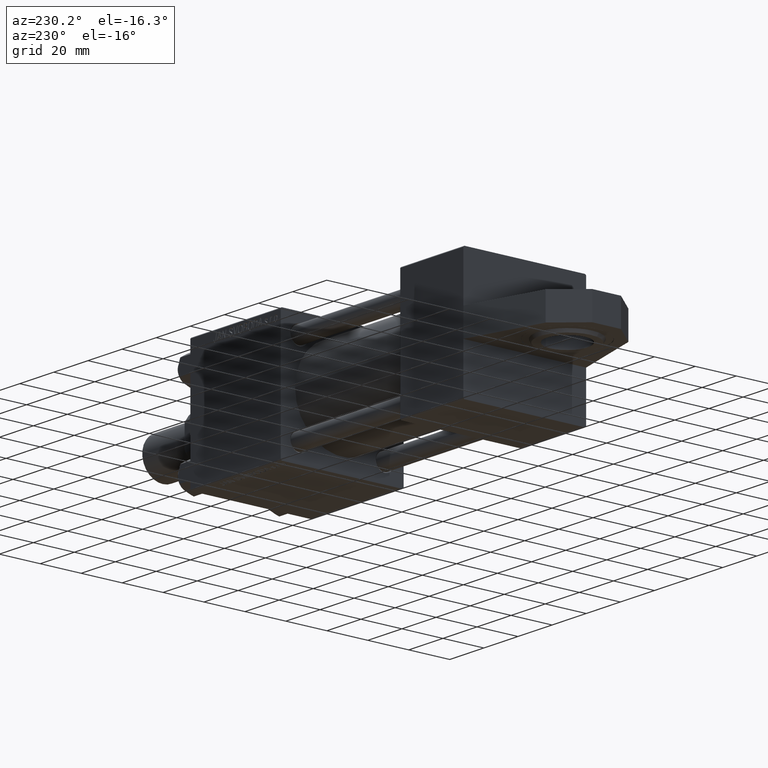
[diagram: clean part render]
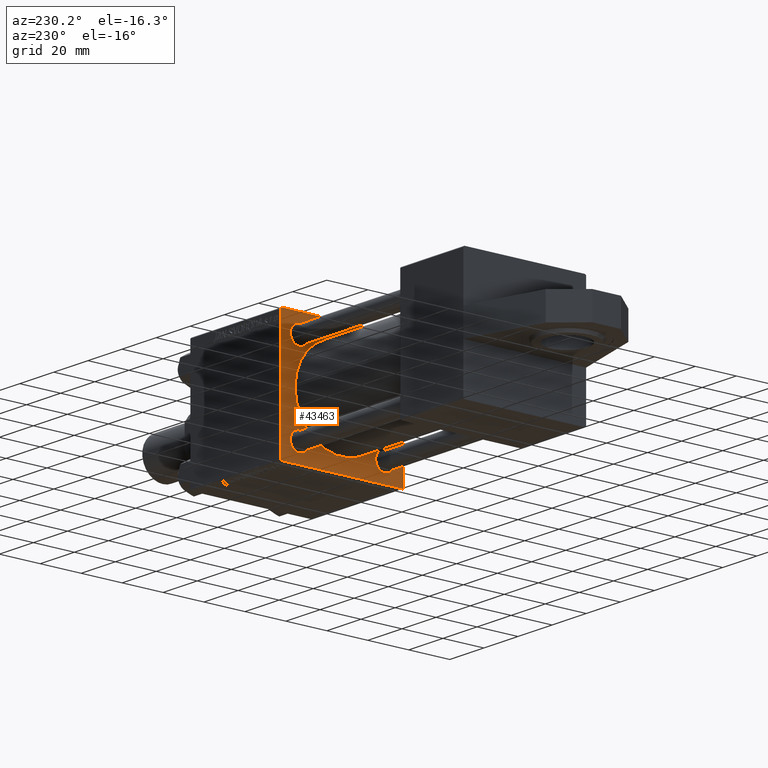
[diagram: same view with one face highlighted and labeled with its STEP entity id]
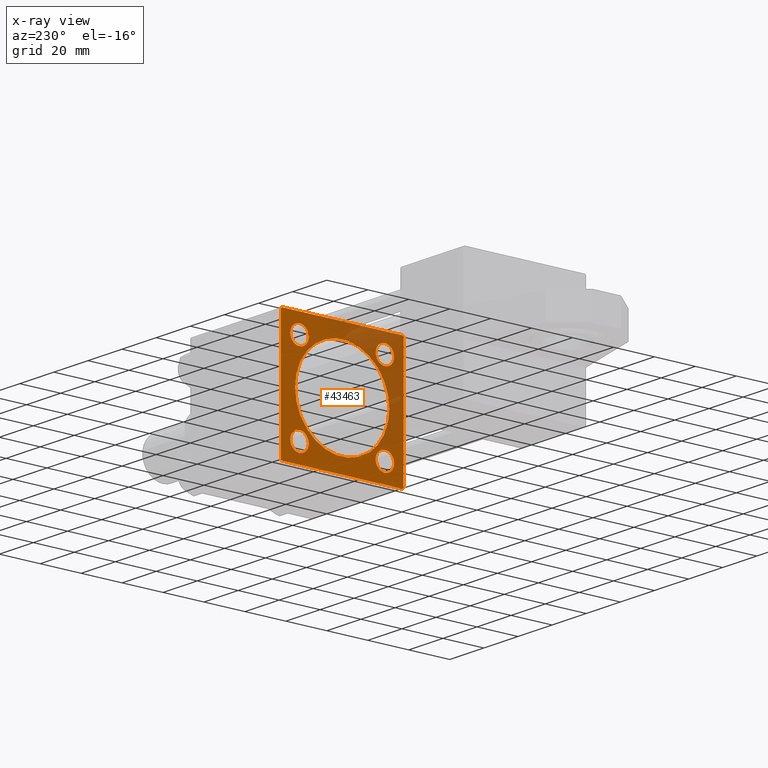
[diagram: x-ray of the same camera — body ghosted, the highlighted face saturated]
A machine part, auxiliary view. The second image highlights one B-rep face of the part: STEP entity #43463.
The next image is the same camera in x-ray: the body ghosted, the highlighted face saturated — about 33% of this face is hidden behind the body in this view.
In plain terms, the highlighted planar face has unit normal (-1, 0, 0).
Its self-contained STEP definition (entity closure, byte-faithful):
#1 = CARTESIAN_POINT ( 'NONE',  ( 107.0000000000000142, -29.50000000000002487, 29.99999999999999289 ) ) ;
#389 = FACE_OUTER_BOUND ( 'NONE', #39877, .T. ) ;
#590 = AXIS2_PLACEMENT_3D ( 'NONE', #11017, #46446, #3307 ) ;
#981 = CARTESIAN_POINT ( 'NONE',  ( 107.0000000000000142, -30.00000000000000000, 29.99999999999999289 ) ) ;
#988 = ORIENTED_EDGE ( 'NONE', *, *, #26644, .T. ) ;
#1090 = ORIENTED_EDGE ( 'NONE', *, *, #34230, .T. ) ;
#1176 = ORIENTED_EDGE ( 'NONE', *, *, #26183, .T. ) ;
#1491 = EDGE_CURVE ( 'NONE', #12984, #36021, #13857, .T. ) ;
#1623 = DIRECTION ( 'NONE',  ( 1.000000000000000000, -0.000000000000000000, 0.000000000000000000 ) ) ;
#1671 = DIRECTION ( 'NONE',  ( 0.000000000000000000, 0.000000000000000000, 1.000000000000000000 ) ) ;
#1841 = CARTESIAN_POINT ( 'NONE',  ( 107.0000000000000142, -29.75000000000001066, 29.75000000000001066 ) ) ;
#2105 = ORIENTED_EDGE ( 'NONE', *, *, #2419, .F. ) ;
#2200 = CARTESIAN_POINT ( 'NONE',  ( 107.0000000000000142, -20.85000000000000142, -25.34999999999997655 ) ) ;
#2419 = EDGE_CURVE ( 'NONE', #42740, #33787, #40095, .T. ) ;
#2504 = EDGE_CURVE ( 'NONE', #8441, #45309, #15558, .T. ) ;
#2676 = EDGE_CURVE ( 'NONE', #34065, #33787, #2875, .T. ) ;
#2700 = CARTESIAN_POINT ( 'NONE',  ( 107.0000000000000142, 20.84999999999999787, 16.35000000000002274 ) ) ;
#2875 = LINE ( 'NONE', #1841, #36884 ) ;
#3307 = DIRECTION ( 'NONE',  ( 0.000000000000000000, 0.000000000000000000, 1.000000000000000000 ) ) ;
#3590 = LINE ( 'NONE', #981, #35015 ) ;
#3953 = CARTESIAN_POINT ( 'NONE',  ( 107.0000000000000142, -29.74999999999999645, -29.74999999999999645 ) ) ;
#4187 = DIRECTION ( 'NONE',  ( 0.000000000000000000, -1.000000000000000000, -1.156482317317871478E-16 ) ) ;
#4493 = DIRECTION ( 'NONE',  ( -0.000000000000000000, 0.000000000000000000, 1.000000000000000000 ) ) ;
#4676 = CARTESIAN_POINT ( 'NONE',  ( 107.0000000000000142, 30.00000000000000000, 30.00000000000000000 ) ) ;
#5036 = EDGE_CURVE ( 'NONE', #43813, #6222, #11545, .T. ) ;
#5240 = FACE_BOUND ( 'NONE', #40808, .T. ) ;
#5721 = DIRECTION ( 'NONE',  ( 0.000000000000000000, 0.000000000000000000, 1.000000000000000000 ) ) ;
#5764 = AXIS2_PLACEMENT_3D ( 'NONE', #40889, #1623, #5721 ) ;
#6026 = CARTESIAN_POINT ( 'NONE',  ( 107.0000000000000142, -30.00000000000000000, -29.49999999999998579 ) ) ;
#6222 = VERTEX_POINT ( 'NONE', #18025 ) ;
#6488 = AXIS2_PLACEMENT_3D ( 'NONE', #36844, #48663, #1671 ) ;
#6543 = ORIENTED_EDGE ( 'NONE', *, *, #28515, .F. ) ;
#6886 = EDGE_CURVE ( 'NONE', #26181, #7179, #33718, .T. ) ;
#7179 = VERTEX_POINT ( 'NONE', #7789 ) ;
#7789 = CARTESIAN_POINT ( 'NONE',  ( 107.0000000000000142, 2.146024240737016609E-16, -23.00000000000000000 ) ) ;
#7800 = VECTOR ( 'NONE', #46135, 1000.000000000000114 ) ;
#7972 = CARTESIAN_POINT ( 'NONE',  ( 107.0000000000000142, 29.50000000000000000, 30.00000000000000000 ) ) ;
#8045 = CARTESIAN_POINT ( 'NONE',  ( 107.0000000000000142, 30.00000000000000000, -29.99999999999999289 ) ) ;
#8441 = VERTEX_POINT ( 'NONE', #22122 ) ;
#8539 = LINE ( 'NONE', #8045, #37187 ) ;
#8903 = CIRCLE ( 'NONE', #19560, 4.499999999999976019 ) ;
#9429 = DIRECTION ( 'NONE',  ( 0.000000000000000000, 0.000000000000000000, 1.000000000000000000 ) ) ;
#9702 = VERTEX_POINT ( 'NONE', #10528 ) ;
#10091 = CARTESIAN_POINT ( 'NONE',  ( 107.0000000000000142, 20.84999999999999787, -20.85000000000000142 ) ) ;
#10524 = VERTEX_POINT ( 'NONE', #6026 ) ;
#10528 = CARTESIAN_POINT ( 'NONE',  ( 107.0000000000000142, 30.00000000000000000, 29.50000000000000000 ) ) ;
#10958 = LINE ( 'NONE', #21722, #7800 ) ;
#11017 = CARTESIAN_POINT ( 'NONE',  ( 107.0000000000000142, 20.84999999999999787, 20.85000000000000142 ) ) ;
#11057 = DIRECTION ( 'NONE',  ( 1.000000000000000000, -0.000000000000000000, 0.000000000000000000 ) ) ;
#11388 = CIRCLE ( 'NONE', #33472, 4.499999999999976019 ) ;
#11437 = ORIENTED_EDGE ( 'NONE', *, *, #47696, .T. ) ;
#11444 = AXIS2_PLACEMENT_3D ( 'NONE', #32749, #13244, #25047 ) ;
#11545 = CIRCLE ( 'NONE', #5764, 4.499999999999976019 ) ;
#11622 = AXIS2_PLACEMENT_3D ( 'NONE', #26653, #42828, #42575 ) ;
#11752 = CARTESIAN_POINT ( 'NONE',  ( 107.0000000000000142, -29.50000000000000000, -30.00000000000000000 ) ) ;
#11854 = EDGE_LOOP ( 'NONE', ( #38881, #27811 ) ) ;
#12191 = FACE_BOUND ( 'NONE', #48603, .T. ) ;
#12438 = FACE_BOUND ( 'NONE', #21053, .T. ) ;
#12984 = VERTEX_POINT ( 'NONE', #2200 ) ;
#13072 = DIRECTION ( 'NONE',  ( -0.000000000000000000, -0.7071067811865474617, -0.7071067811865474617 ) ) ;
#13244 = DIRECTION ( 'NONE',  ( 1.000000000000000000, -0.000000000000000000, 0.000000000000000000 ) ) ;
#13831 = LINE ( 'NONE', #29001, #33386 ) ;
#13857 = CIRCLE ( 'NONE', #11444, 4.499999999999976019 ) ;
#14175 = ORIENTED_EDGE ( 'NONE', *, *, #32714, .T. ) ;
#15273 = ORIENTED_EDGE ( 'NONE', *, *, #20081, .T. ) ;
#15389 = CARTESIAN_POINT ( 'NONE',  ( 107.0000000000000142, 20.84999999999999787, 25.34999999999997655 ) ) ;
#15558 = CIRCLE ( 'NONE', #30347, 4.499999999999976019 ) ;
#16375 = VERTEX_POINT ( 'NONE', #15389 ) ;
#16899 = CARTESIAN_POINT ( 'NONE',  ( 107.0000000000000142, -20.84999999999999432, 16.35000000000002274 ) ) ;
#17504 = DIRECTION ( 'NONE',  ( 1.000000000000000000, -0.000000000000000000, 0.000000000000000000 ) ) ;
#18025 = CARTESIAN_POINT ( 'NONE',  ( 107.0000000000000142, -20.84999999999999432, 25.34999999999997655 ) ) ;
#19560 = AXIS2_PLACEMENT_3D ( 'NONE', #10091, #17504, #25737 ) ;
#19581 = EDGE_CURVE ( 'NONE', #42740, #9702, #10958, .T. ) ;
#20081 = EDGE_CURVE ( 'NONE', #24019, #10524, #23452, .T. ) ;
#20358 = EDGE_LOOP ( 'NONE', ( #34532, #27139 ) ) ;
#20896 = FACE_BOUND ( 'NONE', #11854, .T. ) ;
#21053 = EDGE_LOOP ( 'NONE', ( #988, #50353 ) ) ;
#21093 = DIRECTION ( 'NONE',  ( 0.000000000000000000, -1.000000000000000000, -1.156482317317871478E-16 ) ) ;
#21722 = CARTESIAN_POINT ( 'NONE',  ( 107.0000000000000142, 29.74999999999999645, 29.74999999999999645 ) ) ;
#22114 = VECTOR ( 'NONE', #21093, 1000.000000000000000 ) ;
#22122 = CARTESIAN_POINT ( 'NONE',  ( 107.0000000000000142, 20.84999999999999787, -16.35000000000002274 ) ) ;
#22596 = DIRECTION ( 'NONE',  ( 0.000000000000000000, 0.000000000000000000, 1.000000000000000000 ) ) ;
#22842 = CARTESIAN_POINT ( 'NONE',  ( 107.0000000000000142, -20.85000000000000142, -20.85000000000000142 ) ) ;
#23452 = LINE ( 'NONE', #3953, #43921 ) ;
#23470 = VERTEX_POINT ( 'NONE', #2700 ) ;
#23674 = AXIS2_PLACEMENT_3D ( 'NONE', #47054, #43444, #24403 ) ;
#24002 = CARTESIAN_POINT ( 'NONE',  ( 107.0000000000000142, 0.000000000000000000, 0.000000000000000000 ) ) ;
#24019 = VERTEX_POINT ( 'NONE', #11752 ) ;
#24403 = DIRECTION ( 'NONE',  ( 0.000000000000000000, 0.000000000000000000, -1.000000000000000000 ) ) ;
#25047 = DIRECTION ( 'NONE',  ( 0.000000000000000000, 0.000000000000000000, 1.000000000000000000 ) ) ;
#25737 = DIRECTION ( 'NONE',  ( 0.000000000000000000, 0.000000000000000000, 1.000000000000000000 ) ) ;
#26051 = ORIENTED_EDGE ( 'NONE', *, *, #2676, .T. ) ;
#26181 = VERTEX_POINT ( 'NONE', #36946 ) ;
#26183 = EDGE_CURVE ( 'NONE', #38525, #47135, #13831, .T. ) ;
#26644 = EDGE_CURVE ( 'NONE', #6222, #43813, #27664, .T. ) ;
#26653 = CARTESIAN_POINT ( 'NONE',  ( 107.0000000000000142, -2.602085213965210642E-15, 0.000000000000000000 ) ) ;
#27139 = ORIENTED_EDGE ( 'NONE', *, *, #36801, .T. ) ;
#27664 = CIRCLE ( 'NONE', #34222, 4.499999999999976019 ) ;
#27777 = CIRCLE ( 'NONE', #23674, 23.00000000000000000 ) ;
#27811 = ORIENTED_EDGE ( 'NONE', *, *, #1491, .T. ) ;
#27940 = DIRECTION ( 'NONE',  ( 0.000000000000000000, 0.000000000000000000, -1.000000000000000000 ) ) ;
#28137 = VECTOR ( 'NONE', #43215, 1000.000000000000000 ) ;
#28429 = DIRECTION ( 'NONE',  ( 1.000000000000000000, -0.000000000000000000, 0.000000000000000000 ) ) ;
#28515 = EDGE_CURVE ( 'NONE', #34065, #10524, #3590, .T. ) ;
#28623 = CIRCLE ( 'NONE', #6488, 4.499999999999976019 ) ;
#29001 = CARTESIAN_POINT ( 'NONE',  ( 107.0000000000000142, 29.74999999999999645, -29.74999999999999645 ) ) ;
#29442 = EDGE_CURVE ( 'NONE', #23470, #16375, #50645, .T. ) ;
#30347 = AXIS2_PLACEMENT_3D ( 'NONE', #44467, #47567, #48576 ) ;
#30658 = DIRECTION ( 'NONE',  ( 0.000000000000000000, -0.7071067811865474617, 0.7071067811865474617 ) ) ;
#31820 = CARTESIAN_POINT ( 'NONE',  ( 107.0000000000000142, 29.50000000000000000, -29.99999999999999289 ) ) ;
#32714 = EDGE_CURVE ( 'NONE', #45309, #8441, #8903, .T. ) ;
#32749 = CARTESIAN_POINT ( 'NONE',  ( 107.0000000000000142, -20.85000000000000142, -20.85000000000000142 ) ) ;
#33052 = CARTESIAN_POINT ( 'NONE',  ( 107.0000000000000142, -20.85000000000000142, -16.35000000000002274 ) ) ;
#33162 = EDGE_CURVE ( 'NONE', #36021, #12984, #11388, .T. ) ;
#33386 = VECTOR ( 'NONE', #13072, 1000.000000000000114 ) ;
#33472 = AXIS2_PLACEMENT_3D ( 'NONE', #22842, #11057, #22596 ) ;
#33718 = CIRCLE ( 'NONE', #11622, 23.00000000000000000 ) ;
#33787 = VERTEX_POINT ( 'NONE', #1 ) ;
#34065 = VERTEX_POINT ( 'NONE', #44643 ) ;
#34222 = AXIS2_PLACEMENT_3D ( 'NONE', #36636, #28429, #9429 ) ;
#34230 = EDGE_CURVE ( 'NONE', #16375, #23470, #28623, .T. ) ;
#34532 = ORIENTED_EDGE ( 'NONE', *, *, #6886, .T. ) ;
#35015 = VECTOR ( 'NONE', #27940, 1000.000000000000000 ) ;
#35506 = ORIENTED_EDGE ( 'NONE', *, *, #2504, .T. ) ;
#35553 = FACE_BOUND ( 'NONE', #20358, .T. ) ;
#35742 = LINE ( 'NONE', #4676, #28137 ) ;
#36021 = VERTEX_POINT ( 'NONE', #33052 ) ;
#36636 = CARTESIAN_POINT ( 'NONE',  ( 107.0000000000000142, -20.84999999999999432, 20.85000000000000142 ) ) ;
#36801 = EDGE_CURVE ( 'NONE', #7179, #26181, #27777, .T. ) ;
#36844 = CARTESIAN_POINT ( 'NONE',  ( 107.0000000000000142, 20.84999999999999787, 20.85000000000000142 ) ) ;
#36857 = ORIENTED_EDGE ( 'NONE', *, *, #29442, .T. ) ;
#36884 = VECTOR ( 'NONE', #37790, 1000.000000000000114 ) ;
#36946 = CARTESIAN_POINT ( 'NONE',  ( 107.0000000000000142, -2.602085213965210642E-15, 23.00000000000000000 ) ) ;
#37187 = VECTOR ( 'NONE', #4187, 1000.000000000000000 ) ;
#37790 = DIRECTION ( 'NONE',  ( -0.000000000000000000, 0.7071067811865474617, 0.7071067811865474617 ) ) ;
#38211 = ORIENTED_EDGE ( 'NONE', *, *, #47698, .T. ) ;
#38525 = VERTEX_POINT ( 'NONE', #47363 ) ;
#38881 = ORIENTED_EDGE ( 'NONE', *, *, #33162, .T. ) ;
#39661 = DIRECTION ( 'NONE',  ( -1.000000000000000000, 0.000000000000000000, -0.000000000000000000 ) ) ;
#39877 = EDGE_LOOP ( 'NONE', ( #38211, #15273, #6543, #26051, #2105, #49681, #11437, #1176 ) ) ;
#40095 = LINE ( 'NONE', #44215, #22114 ) ;
#40808 = EDGE_LOOP ( 'NONE', ( #35506, #14175 ) ) ;
#40889 = CARTESIAN_POINT ( 'NONE',  ( 107.0000000000000142, -20.84999999999999432, 20.85000000000000142 ) ) ;
#42575 = DIRECTION ( 'NONE',  ( 0.000000000000000000, 0.000000000000000000, -1.000000000000000000 ) ) ;
#42740 = VERTEX_POINT ( 'NONE', #7972 ) ;
#42828 = DIRECTION ( 'NONE',  ( 1.000000000000000000, 0.000000000000000000, 0.000000000000000000 ) ) ;
#43215 = DIRECTION ( 'NONE',  ( 0.000000000000000000, 0.000000000000000000, -1.000000000000000000 ) ) ;
#43444 = DIRECTION ( 'NONE',  ( 1.000000000000000000, 0.000000000000000000, 0.000000000000000000 ) ) ;
#43463 = ADVANCED_FACE ( 'NONE', ( #12438, #12191, #5240, #20896, #35553, #389 ), #43520, .T. ) ;
#43520 = PLANE ( 'NONE',  #46050 ) ;
#43813 = VERTEX_POINT ( 'NONE', #16899 ) ;
#43921 = VECTOR ( 'NONE', #30658, 1000.000000000000114 ) ;
#44215 = CARTESIAN_POINT ( 'NONE',  ( 107.0000000000000142, 30.00000000000000000, 30.00000000000000000 ) ) ;
#44467 = CARTESIAN_POINT ( 'NONE',  ( 107.0000000000000142, 20.84999999999999787, -20.85000000000000142 ) ) ;
#44643 = CARTESIAN_POINT ( 'NONE',  ( 107.0000000000000142, -30.00000000000000000, 29.50000000000001776 ) ) ;
#45309 = VERTEX_POINT ( 'NONE', #45361 ) ;
#45361 = CARTESIAN_POINT ( 'NONE',  ( 107.0000000000000142, 20.84999999999999787, -25.34999999999997655 ) ) ;
#46050 = AXIS2_PLACEMENT_3D ( 'NONE', #24002, #39661, #4493 ) ;
#46135 = DIRECTION ( 'NONE',  ( 0.000000000000000000, 0.7071067811865474617, -0.7071067811865474617 ) ) ;
#46446 = DIRECTION ( 'NONE',  ( 1.000000000000000000, -0.000000000000000000, 0.000000000000000000 ) ) ;
#47054 = CARTESIAN_POINT ( 'NONE',  ( 107.0000000000000142, -2.602085213965210642E-15, 0.000000000000000000 ) ) ;
#47135 = VERTEX_POINT ( 'NONE', #31820 ) ;
#47363 = CARTESIAN_POINT ( 'NONE',  ( 107.0000000000000142, 30.00000000000000000, -29.49999999999997868 ) ) ;
#47567 = DIRECTION ( 'NONE',  ( 1.000000000000000000, -0.000000000000000000, 0.000000000000000000 ) ) ;
#47696 = EDGE_CURVE ( 'NONE', #9702, #38525, #35742, .T. ) ;
#47698 = EDGE_CURVE ( 'NONE', #47135, #24019, #8539, .T. ) ;
#48576 = DIRECTION ( 'NONE',  ( 0.000000000000000000, 0.000000000000000000, 1.000000000000000000 ) ) ;
#48603 = EDGE_LOOP ( 'NONE', ( #1090, #36857 ) ) ;
#48663 = DIRECTION ( 'NONE',  ( 1.000000000000000000, -0.000000000000000000, 0.000000000000000000 ) ) ;
#49681 = ORIENTED_EDGE ( 'NONE', *, *, #19581, .T. ) ;
#50353 = ORIENTED_EDGE ( 'NONE', *, *, #5036, .T. ) ;
#50645 = CIRCLE ( 'NONE', #590, 4.499999999999976019 ) ;